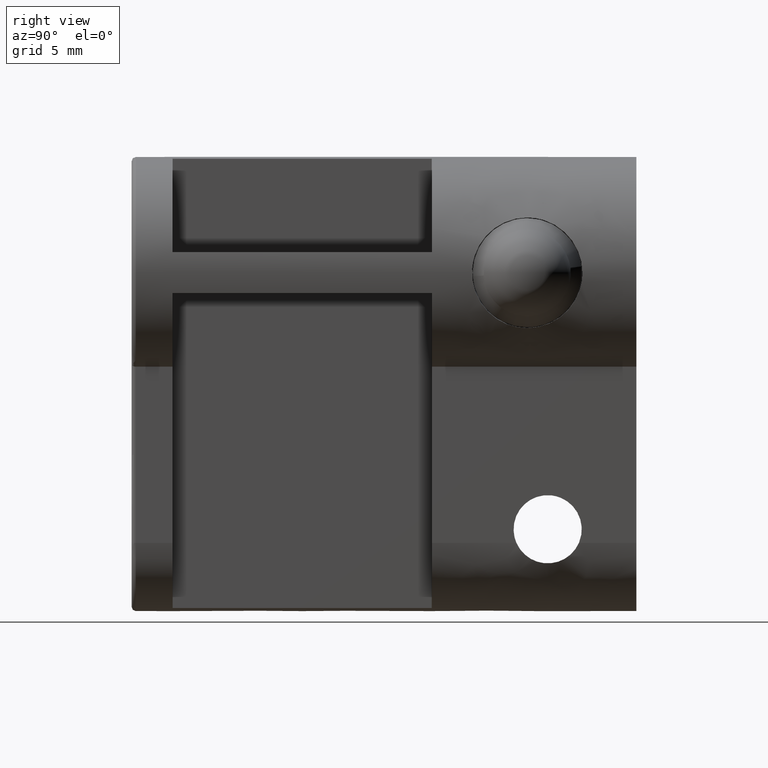
[diagram: clean part render]
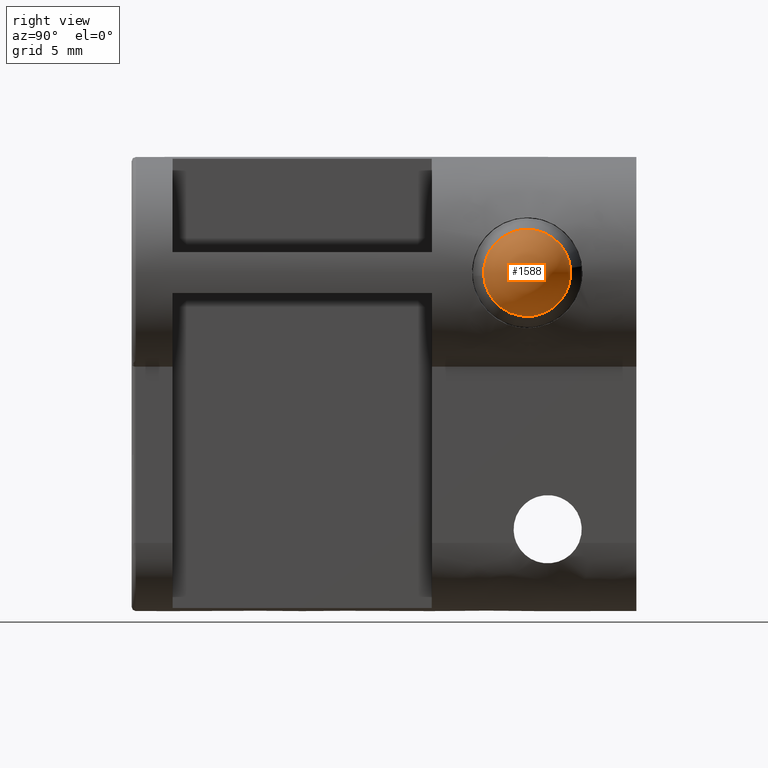
[diagram: same view with one face highlighted and labeled with its STEP entity id]
A machine part, right view. The second image highlights one B-rep face of the part: STEP entity #1588.
In plain terms, the highlighted face is a freeform B-spline surface patch.
Its self-contained STEP definition (entity closure, byte-faithful):
#85=CARTESIAN_POINT('',(8.849999999988228,32.169399438497237,0.376731002681226));
#86=VERTEX_POINT('',#85);
#92=CARTESIAN_POINT('',(8.850000000000000,29.000001377339299,-3.191709623134525));
#93=VERTEX_POINT('',#92);
#94=CARTESIAN_POINT('',(8.849999999988228,32.169399438497237,0.376731002681226));
#95=CARTESIAN_POINT('',(8.850000000000000,32.191711000473823,0.189026192682511));
#96=CARTESIAN_POINT('',(8.850000000000000,32.191711000473830,0.0));
#97=CARTESIAN_POINT('',(8.850000000000000,32.191711000473838,-3.191709623134525));
#98=CARTESIAN_POINT('',(8.850000000000000,29.000001377339299,-3.191709623134525));
#106=(BOUNDED_CURVE()B_SPLINE_CURVE(2,(#94,#95,#96,#97,#98),.UNSPECIFIED.,.F.,.U.)B_SPLINE_CURVE_WITH_KNOTS((3,2,3),(0.229562473508485,0.250000000000000,0.500000000000000),.UNSPECIFIED.)CURVE()GEOMETRIC_REPRESENTATION_ITEM()RATIONAL_B_SPLINE_CURVE((0.956026754173853,0.976055948325260,1.0,0.707106781186548,1.0))REPRESENTATION_ITEM(''));
#107=EDGE_CURVE('',#86,#93,#106,.T.);
#109=CARTESIAN_POINT('',(8.849999999994001,25.814244936029411,-0.194849211145805));
#110=VERTEX_POINT('',#109);
#111=CARTESIAN_POINT('',(8.850000000000000,29.000001377339299,-3.191709623134525));
#112=CARTESIAN_POINT('',(8.849999999999998,25.997540771119336,-3.191709623134525));
#113=CARTESIAN_POINT('',(8.849999999994001,25.814244936029404,-0.194849211145805));
#121=(BOUNDED_CURVE()B_SPLINE_CURVE(2,(#111,#112,#113),.UNSPECIFIED.,.F.,.U.)B_SPLINE_CURVE_WITH_KNOTS((3,3),(0.500000000000000,0.739332962238299),.UNSPECIFIED.)CURVE()GEOMETRIC_REPRESENTATION_ITEM()RATIONAL_B_SPLINE_CURVE((1.0,0.719603993287465,0.976072041665338))REPRESENTATION_ITEM(''));
#122=EDGE_CURVE('',#93,#110,#121,.T.);
#226=CARTESIAN_POINT('',(8.850000000000000,29.000001377339299,3.191709623134525));
#227=VERTEX_POINT('',#226);
#228=CARTESIAN_POINT('',(8.849999999994001,25.814244936029411,-0.194849211145805));
#229=CARTESIAN_POINT('',(8.850000000000000,25.808291754204784,-0.097515548667435));
#230=CARTESIAN_POINT('',(8.850000000000000,25.808291754204781,0.0));
#231=CARTESIAN_POINT('',(8.850000000000000,25.808291754204781,3.191709623134525));
#232=CARTESIAN_POINT('',(8.850000000000000,29.000001377339299,3.191709623134525));
#240=(BOUNDED_CURVE()B_SPLINE_CURVE(2,(#228,#229,#230,#231,#232),.UNSPECIFIED.,.F.,.U.)B_SPLINE_CURVE_WITH_KNOTS((3,2,3),(0.739332962238298,0.750000000000000,1.0),.UNSPECIFIED.)CURVE()GEOMETRIC_REPRESENTATION_ITEM()RATIONAL_B_SPLINE_CURVE((0.976072041665336,0.987502787899082,1.0,0.707106781186548,1.0))REPRESENTATION_ITEM(''));
#241=EDGE_CURVE('',#110,#227,#240,.T.);
#243=CARTESIAN_POINT('',(8.850000000000000,29.000001377339299,3.191709623134525));
#244=CARTESIAN_POINT('',(8.850000000000000,31.834796558720299,3.191709623134525));
#245=CARTESIAN_POINT('',(8.849999999988228,32.169399438497237,0.376731002681226));
#253=(BOUNDED_CURVE()B_SPLINE_CURVE(2,(#243,#244,#245),.UNSPECIFIED.,.F.,.U.)B_SPLINE_CURVE_WITH_KNOTS((3,3),(0.0,0.229562473508485),.UNSPECIFIED.)CURVE()GEOMETRIC_REPRESENTATION_ITEM()RATIONAL_B_SPLINE_CURVE((1.0,0.731050832861288,0.956026754173853))REPRESENTATION_ITEM(''));
#254=EDGE_CURVE('',#227,#86,#253,.T.);
#1558=CARTESIAN_POINT('',(7.545906661519811,26.741102154998938,-2.258899222340370));
#1559=CARTESIAN_POINT('',(8.663424719443050,27.387695474659889,-3.224611805358832));
#1560=CARTESIAN_POINT('',(8.663424719443050,30.612307280018726,-3.224611805358832));
#1561=CARTESIAN_POINT('',(7.545906661519811,31.258900599679674,-2.258899222340370));
#1562=CARTESIAN_POINT('',(8.663424719443050,25.775389571980480,-1.612305902679416));
#1563=CARTESIAN_POINT('',(11.449999999999999,26.183674298947089,-2.816327078392216));
#1564=CARTESIAN_POINT('',(11.449999999999999,31.816328455731519,-2.816327078392216));
#1565=CARTESIAN_POINT('',(8.663424719443050,32.224613182698143,-1.612305902679416));
#1566=CARTESIAN_POINT('',(8.663424719443050,25.775389571980480,1.612305902679416));
#1567=CARTESIAN_POINT('',(11.449999999999999,26.183674298947089,2.816327078392215));
#1568=CARTESIAN_POINT('',(11.449999999999999,31.816328455731519,2.816327078392215));
#1569=CARTESIAN_POINT('',(8.663424719443050,32.224613182698143,1.612305902679416));
#1570=CARTESIAN_POINT('',(7.545906661519811,26.741102154998938,2.258899222340370));
#1571=CARTESIAN_POINT('',(8.663424719443050,27.387695474659889,3.224611805358832));
#1572=CARTESIAN_POINT('',(8.663424719443050,30.612307280018726,3.224611805358832));
#1573=CARTESIAN_POINT('',(7.545906661519811,31.258900599679674,2.258899222340370));
#1581=(BOUNDED_SURFACE()B_SPLINE_SURFACE(2,2,((#1558,#1562,#1566,#1570),(#1559,#1563,#1567,#1571),(#1560,#1564,#1568,#1572),(#1561,#1565,#1569,#1573)),.UNSPECIFIED.,.F.,.F.,.U.)B_SPLINE_SURFACE_WITH_KNOTS((3,1,3),(3,1,3),(0.0,4.101293371363446,8.202586742726892),(0.0,4.101293371363436,8.202586742726872),.UNSPECIFIED.)GEOMETRIC_REPRESENTATION_ITEM()RATIONAL_B_SPLINE_SURFACE(((2.493539375762247,1.746769687881123,1.746769687881123,2.493539375762247),(1.746769687881123,1.0,1.0,1.746769687881123),(1.746769687881123,1.0,1.0,1.746769687881123),(2.493539375762247,1.746769687881123,1.746769687881123,2.493539375762247)))REPRESENTATION_ITEM('')SURFACE());
#1582=ORIENTED_EDGE('',*,*,#241,.F.);
#1583=ORIENTED_EDGE('',*,*,#122,.F.);
#1584=ORIENTED_EDGE('',*,*,#107,.F.);
#1585=ORIENTED_EDGE('',*,*,#254,.F.);
#1586=EDGE_LOOP('',(#1582,#1583,#1584,#1585));
#1587=FACE_OUTER_BOUND('',#1586,.T.);
#1588=ADVANCED_FACE('',(#1587),#1581,.T.);